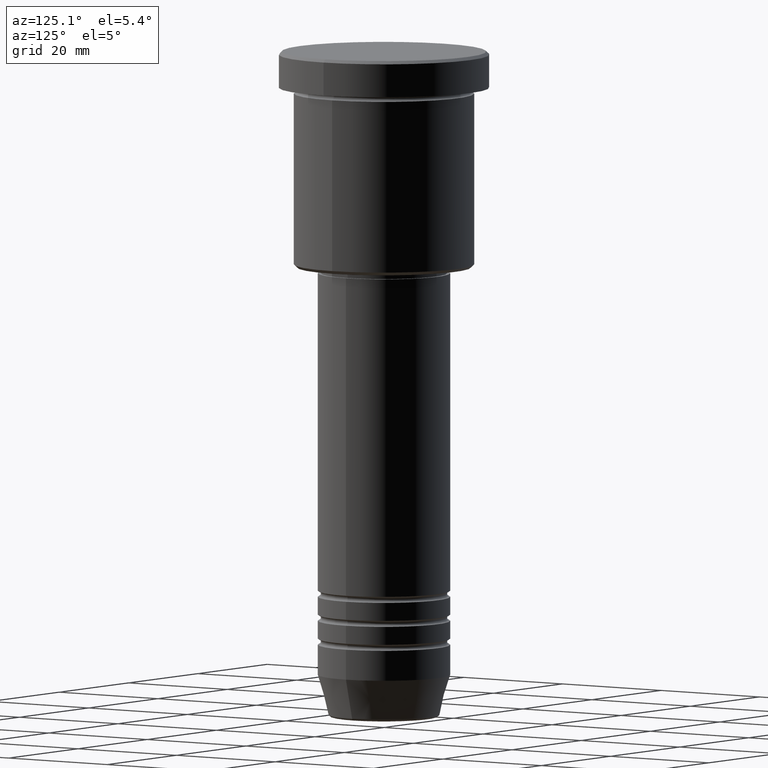
[diagram: clean part render]
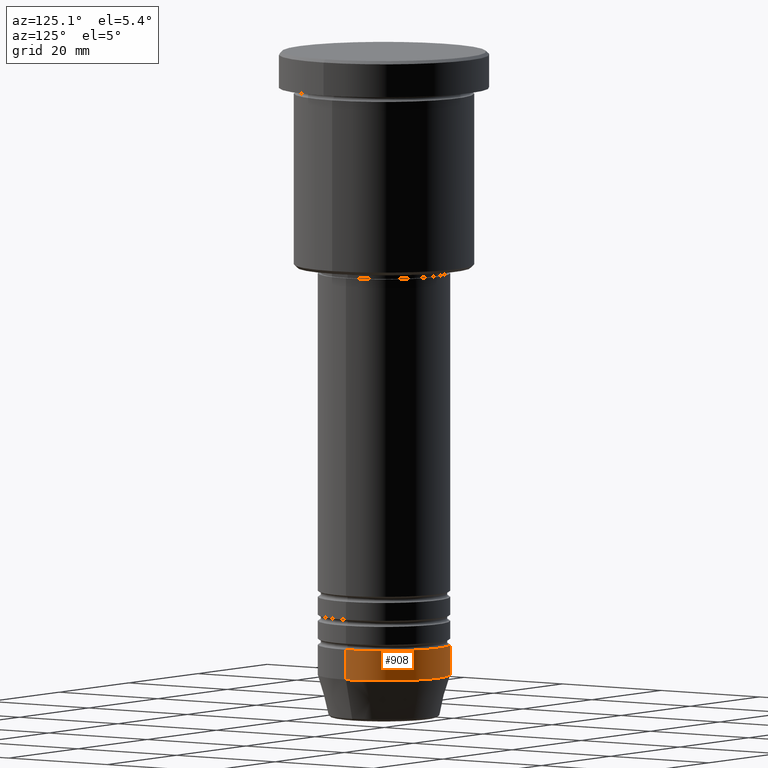
[diagram: same view with one face highlighted and labeled with its STEP entity id]
A machine part, auxiliary view. The second image highlights one B-rep face of the part: STEP entity #908.
In plain terms, the highlighted cylindrical surface (partial cylindrical patch) has radius 11 mm, axis along (-0, -0, 1).
Its self-contained STEP definition (entity closure, byte-faithful):
#13 = CARTESIAN_POINT ( 'NONE',  ( 0.000000000000000000, 0.000000000000000000, -99.00000000000000000 ) ) ;
#18 = EDGE_CURVE ( 'NONE', #384, #61, #78, .T. ) ;
#38 = ORIENTED_EDGE ( 'NONE', *, *, #18, .F. ) ;
#61 = VERTEX_POINT ( 'NONE', #805 ) ;
#77 = CARTESIAN_POINT ( 'NONE',  ( 11.00000000000000000, 0.000000000000000000, -104.0000000000000000 ) ) ;
#78 = LINE ( 'NONE', #176, #495 ) ;
#99 = DIRECTION ( 'NONE',  ( 1.000000000000000000, 0.000000000000000000, 0.000000000000000000 ) ) ;
#174 = ORIENTED_EDGE ( 'NONE', *, *, #955, .F. ) ;
#176 = CARTESIAN_POINT ( 'NONE',  ( 11.00000000000000000, 0.000000000000000000, 0.000000000000000000 ) ) ;
#181 = CARTESIAN_POINT ( 'NONE',  ( -11.00000000000000000, 1.347111479062088405E-15, 0.000000000000000000 ) ) ;
#205 = VERTEX_POINT ( 'NONE', #578 ) ;
#223 = AXIS2_PLACEMENT_3D ( 'NONE', #13, #455, #99 ) ;
#273 = LINE ( 'NONE', #181, #983 ) ;
#314 = CARTESIAN_POINT ( 'NONE',  ( 0.000000000000000000, 0.000000000000000000, -104.0000000000000000 ) ) ;
#330 = EDGE_LOOP ( 'NONE', ( #430, #1022, #174, #38 ) ) ;
#339 = CYLINDRICAL_SURFACE ( 'NONE', #345, 11.00000000000000000 ) ;
#344 = AXIS2_PLACEMENT_3D ( 'NONE', #314, #595, #933 ) ;
#345 = AXIS2_PLACEMENT_3D ( 'NONE', #835, #825, #1098 ) ;
#381 = CIRCLE ( 'NONE', #223, 11.00000000000000000 ) ;
#384 = VERTEX_POINT ( 'NONE', #77 ) ;
#416 = CIRCLE ( 'NONE', #344, 11.00000000000000000 ) ;
#430 = ORIENTED_EDGE ( 'NONE', *, *, #663, .T. ) ;
#455 = DIRECTION ( 'NONE',  ( -0.000000000000000000, -0.000000000000000000, 1.000000000000000000 ) ) ;
#469 = DIRECTION ( 'NONE',  ( -0.000000000000000000, -0.000000000000000000, 1.000000000000000000 ) ) ;
#495 = VECTOR ( 'NONE', #976, 1000.000000000000000 ) ;
#537 = VERTEX_POINT ( 'NONE', #929 ) ;
#578 = CARTESIAN_POINT ( 'NONE',  ( -11.00000000000000000, 1.347111479062088405E-15, -104.0000000000000000 ) ) ;
#595 = DIRECTION ( 'NONE',  ( -0.000000000000000000, -0.000000000000000000, 1.000000000000000000 ) ) ;
#663 = EDGE_CURVE ( 'NONE', #384, #205, #416, .T. ) ;
#805 = CARTESIAN_POINT ( 'NONE',  ( 11.00000000000000000, 0.000000000000000000, -99.00000000000000000 ) ) ;
#825 = DIRECTION ( 'NONE',  ( -0.000000000000000000, -0.000000000000000000, 1.000000000000000000 ) ) ;
#835 = CARTESIAN_POINT ( 'NONE',  ( 0.000000000000000000, 0.000000000000000000, 0.000000000000000000 ) ) ;
#908 = ADVANCED_FACE ( 'NONE', ( #1147 ), #339, .T. ) ;
#929 = CARTESIAN_POINT ( 'NONE',  ( -11.00000000000000000, 1.347111479062088405E-15, -99.00000000000000000 ) ) ;
#933 = DIRECTION ( 'NONE',  ( 1.000000000000000000, 0.000000000000000000, 0.000000000000000000 ) ) ;
#955 = EDGE_CURVE ( 'NONE', #61, #537, #381, .T. ) ;
#976 = DIRECTION ( 'NONE',  ( -0.000000000000000000, -0.000000000000000000, 1.000000000000000000 ) ) ;
#977 = EDGE_CURVE ( 'NONE', #205, #537, #273, .T. ) ;
#983 = VECTOR ( 'NONE', #469, 1000.000000000000000 ) ;
#1022 = ORIENTED_EDGE ( 'NONE', *, *, #977, .T. ) ;
#1098 = DIRECTION ( 'NONE',  ( 1.000000000000000000, 0.000000000000000000, 0.000000000000000000 ) ) ;
#1147 = FACE_OUTER_BOUND ( 'NONE', #330, .T. ) ;